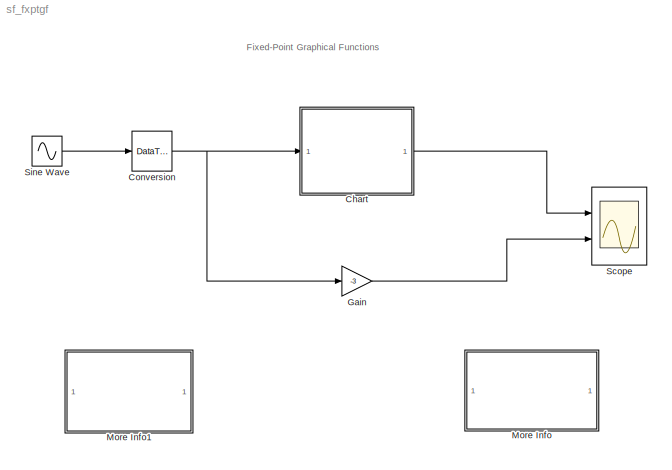
MODEL sf_fxptgf
KIND model
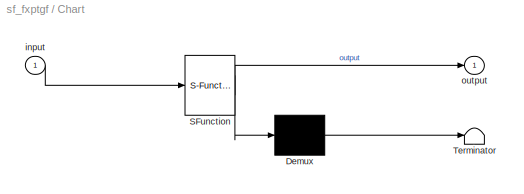
BLOCK [SubSystem] Chart
  MaskDescription = Stateflow diagram
  MaskDisplay = plot(sf('Private','sfblk','xIcon'),sf('Private','sfblk','yIcon'));text(0.5,0,sf('Private', 'sfblk', 'tIcon'),'HorizontalAl','Center','VerticalAl','Bottom');
  MaskIconFrame = off
  MaskIconOpaque = off
  MaskIconRotate = none
  MaskIconUnits = autoscale
  MaskSelfModifiable = on
  MaskType = Stateflow
  MinAlgLoopOccurrences = off
  Ports = [1, 1]
  PropExecContextAcrossSSBoundary = on
  RTWSystemCode = Auto
  TreatAsAtomicUnit = off
BLOCK [Demux] Chart/ Demux 
  Outputs = 1
  Ports = [1, 1]
BLOCK [S-Function] Chart/ SFunction 
  FunctionName = sf_sfun
  PortCounts = [1 2]
  Ports = [1, 2]
  Tag = Stateflow S-Function sf_fxptgf 1
BLOCK [Terminator] Chart/ Terminator 
BLOCK [Inport] Chart/input
  IconDisplay = Port number
  LatchInput = off
  Port = 1
BLOCK [Outport] Chart/output
  IconDisplay = Port number
BLOCK [DataTypeConversion] Conversion
  OutDataTypeMode = Specify via dialog
  OutScaling = 2^-4
  RndMeth = Floor
  SaturateOnIntegerOverflow = off
BLOCK [Gain] Gain
  Gain = -3
BLOCK [SubSystem] More Info
  MaskDisplay = disp('Double click\\nhere for\\ninformation on\\nthis demonstration')
  MaskIconFrame = on
  MaskIconOpaque = on
  MaskIconRotate = none
  MaskIconUnits = autoscale
  MinAlgLoopOccurrences = off
  Ports = []
  PropExecContextAcrossSSBoundary = on
  RTWSystemCode = Auto
  TreatAsAtomicUnit = off
BLOCK [SubSystem] More Info1
  MaskDisplay = disp('Double click\\nhere for<path> Help')
  MaskIconFrame = on
  MaskIconOpaque = on
  MaskIconRotate = none
  MaskIconUnits = autoscale
  MinAlgLoopOccurrences = off
  OpenFcn = simcad(bdroot);
  Ports = []
  PropExecContextAcrossSSBoundary = on
  RTWSystemCode = Auto
  TreatAsAtomicUnit = off
BLOCK [Scope] Scope
  DataFormat = StructureWithTime
  LimitDataPoints = off
  NumInputPorts = 2
  Ports = [2]
  YMax = 3~4
  YMin = 0~-4
BLOCK [Sin] Sine Wave
  Ports = [0, 1]
  SampleTime = 0
  SineType = Time based
ANNOTATION (root): Fixed-Point Graphical Functions
ANNOTATION More Info: Fixed-Point Graphical Functions
ANNOTATION More Info: Fixed-point data types can also be used as inputs to Graphical Functions within Stateflow. In this \ndemonstration, we provide a 16 bit signed input to the Stateflow chart from Simulink and send out\ndouble. Within the chart, a graphical function uses takes the input and multiplies it by 3 if the value\nis greater than or equal to zero or by -3 if the value is less than zero. The output is then co...<+68ch>
LINE Chart/ Demux :1 -> Chart/ Terminator :1
LINE Chart/ SFunction :1 -> Chart/ Demux :1
LINE Chart/ SFunction :2 -> Chart/output:1
LINE Chart/input:1 -> Chart/ SFunction :1
LINE Chart:1 -> Scope:1
NET Conversion:1 -> Chart:1, Gain:1
LINE Gain:1 -> Scope:2
LINE Sine Wave:1 -> Conversion:1
note: NET lines group one-source signal fan-out (src -> all destinations, sorted); 1:1 wires keep LINE
CHART Chart states=1 transitions=4
  STATE_LABEL 'out = fixout(fixin)'
note: 1 file-system path scrubbed to <path> (not preserved elsewhere — flat text is the only slx artifact)
